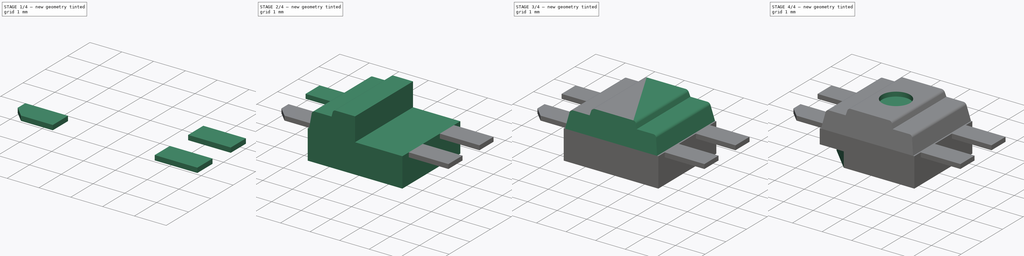
[diagram: build sequence overview — one tinted view per stage of 4, left to right]
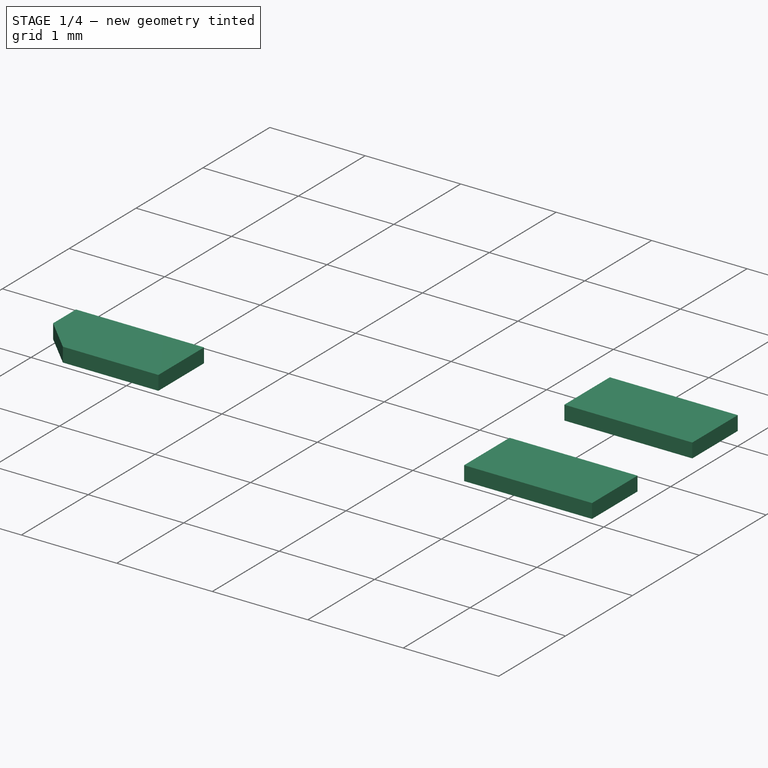
[diagram: stage 1 of 4 — iso view after this stage's code; geometry added in this stage tinted green]
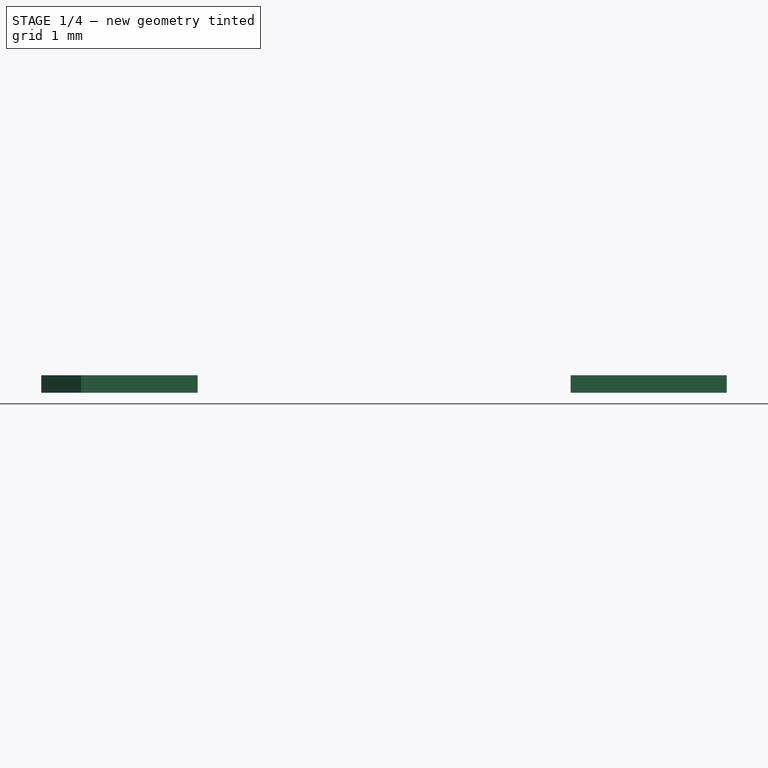
[diagram: stage 1 of 4 — front view after this stage's code; geometry added in this stage tinted green]
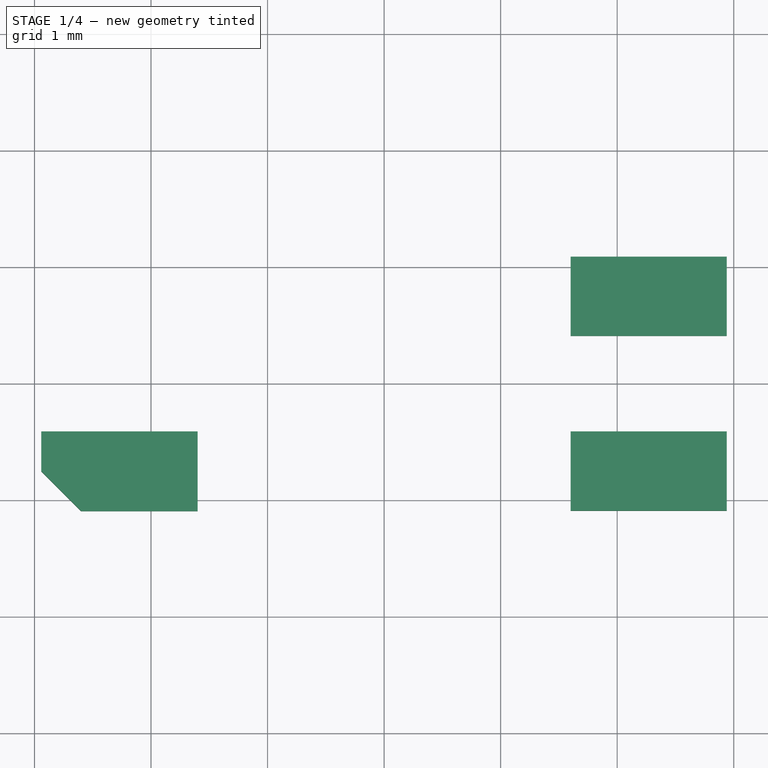
[diagram: stage 1 of 4 — top view after this stage's code; geometry added in this stage tinted green]
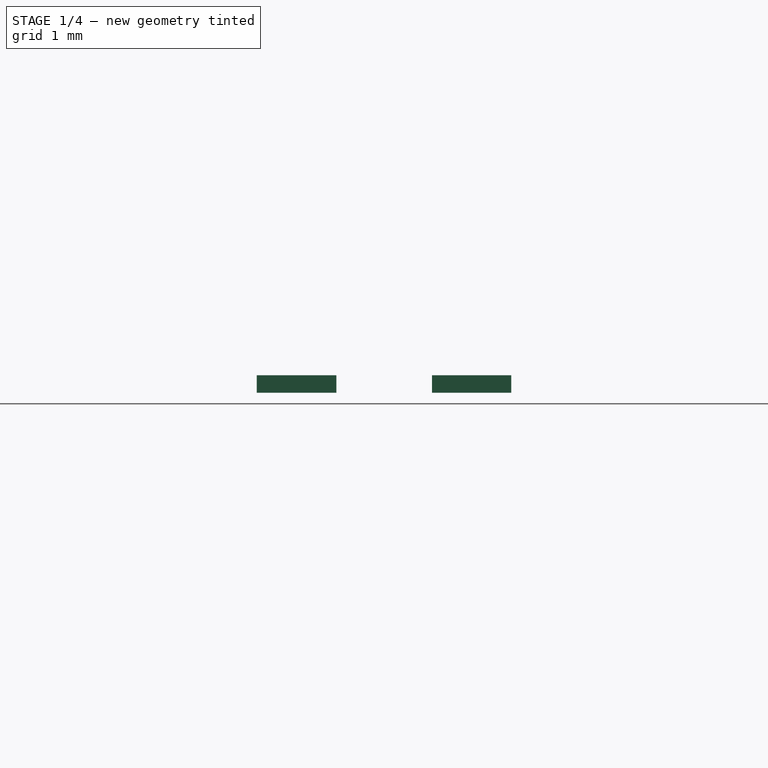
[diagram: stage 1 of 4 — right view after this stage's code; geometry added in this stage tinted green]
FCSTD DOCUMENT  (FreeCAD 1.0R39319 (Git))
Label: LED_SK6812MINI-E_3.2x2.8mm_P1.5mm
License: All rights reserved
LicenseURL: https://en.wikipedia.org/wiki/All_rights_reserved
objects: Sketcher::SketchObject×12, PartDesign::Pad×6, PartDesign::Body×5, PartDesign::Pocket×3, PartDesign::Groove×2, PartDesign::Mirrored×1, PartDesign::Fillet×1
note: 67 computed .brp shape members not serialized (recipe doc carries the construction recipe); baked Part::Feature solids carry a one-line shape summary decoded from their .brp

FEATURE [PartDesign::Body] Body001  label="Pin1"
  AllowCompound = false
  Group = -> [Sketch009,Pad002]
  Origin = -> Origin001
  Tip = -> Pad002
FEATURE [Sketcher::SketchObject] MirroredSketch001
  ArcFitTolerance = 1e-06
  FullyConstrained = false
  MakeInternals = false
  sketch-geometry (5):
    g0: LineSegment StartX=-2.94186 StartY=-0.751761 StartZ=0 EndX=-2.94186 EndY=-0.41 EndZ=0
    g1: LineSegment StartX=-2.94186 StartY=-0.41 StartZ=0 EndX=-1.6 EndY=-0.41 EndZ=0
    g2: LineSegment StartX=-1.6 StartY=-0.41 StartZ=0 EndX=-1.6 EndY=-1.09352 EndZ=0
    g3: LineSegment StartX=-1.6 StartY=-1.09352 StartZ=0 EndX=-2.6001 EndY=-1.09352 EndZ=0
    g4: LineSegment StartX=-2.94186 StartY=-0.751761 StartZ=0 EndX=-2.6001 EndY=-1.09352 EndZ=0
  constraints (10):
    c: Coincident(g0,g1)
    c: Coincident(g1,g2)
    c: Coincident(g2,g3)
    c: Vertical(g0)
    c: Vertical(g2)
    c: Horizontal(g1)
    c: Horizontal(g3)
    c: Angle(g4,g3) = 0.785398
    c: PointOnObject(g0,g4)
    c: Coincident(g3,g4)
FEATURE [PartDesign::Pad] Pad003
  Direction = (0,0,1)
  Length = 0.15
  Length2 = 10
  Profile = -> MirroredSketch001
  ReferenceAxis = -> MirroredSketch001 [N_Axis]
  Refine = true
  Suppressed = false
  Type = 0
FEATURE [PartDesign::Body] Body002  label="Pin2"
  AllowCompound = false
  Group = -> [MirroredSketch001,Pad003]
  Origin = -> Origin002
  Tip = -> Pad003
FEATURE [Sketcher::SketchObject] MirroredSketch002
  ArcFitTolerance = 1e-06
  FullyConstrained = false
  MakeInternals = false
  sketch-geometry (4):
    g0: LineSegment StartX=2.94 StartY=1.09 StartZ=0 EndX=2.94 EndY=0.41 EndZ=0
    g1: LineSegment StartX=2.94 StartY=0.41 StartZ=0 EndX=1.6 EndY=0.41 EndZ=0
    g2: LineSegment StartX=1.6 StartY=0.41 StartZ=0 EndX=1.6 EndY=1.09 EndZ=0
    g3: LineSegment StartX=1.6 StartY=1.09 StartZ=0 EndX=2.94 EndY=1.09 EndZ=0
  constraints (8):
    c: Coincident(g0,g1)
    c: Coincident(g1,g2)
    c: Coincident(g2,g3)
    c: Coincident(g3,g0)
    c: Vertical(g0)
    c: Vertical(g2)
    c: Horizontal(g1)
    c: Horizontal(g3)
FEATURE [PartDesign::Pad] Pad004
  Direction = (0,0,1)
  Length = 0.15
  Length2 = 10
  Profile = -> MirroredSketch002
  ReferenceAxis = -> MirroredSketch002 [N_Axis]
  Refine = true
  Suppressed = false
  Type = 0
FEATURE [PartDesign::Body] Body003  label="Pin3"
  AllowCompound = false
  Group = -> [MirroredSketch002,Pad004]
  Origin = -> Origin003
  Tip = -> Pad004
FEATURE [Sketcher::SketchObject] MirroredSketch003
  ArcFitTolerance = 1e-06
  FullyConstrained = false
  MakeInternals = false
  sketch-geometry (4):
    g0: LineSegment StartX=2.94 StartY=-1.09 StartZ=0 EndX=2.94 EndY=-0.41 EndZ=0
    g1: LineSegment StartX=2.94 StartY=-0.41 StartZ=0 EndX=1.6 EndY=-0.41 EndZ=0
    g2: LineSegment StartX=1.6 StartY=-0.41 StartZ=0 EndX=1.6 EndY=-1.09 EndZ=0
    g3: LineSegment StartX=1.6 StartY=-1.09 StartZ=0 EndX=2.94 EndY=-1.09 EndZ=0
  constraints (8):
    c: Coincident(g0,g1)
    c: Coincident(g1,g2)
    c: Coincident(g2,g3)
    c: Coincident(g3,g0)
    c: Vertical(g0)
    c: Vertical(g2)
    c: Horizontal(g1)
    c: Horizontal(g3)
FEATURE [PartDesign::Pad] Pad005
  Direction = (0,0,1)
  Length = 0.15
  Length2 = 10
  Profile = -> MirroredSketch003
  ReferenceAxis = -> MirroredSketch003 [N_Axis]
  Refine = true
  Suppressed = false
  Type = 0
FEATURE [PartDesign::Body] Body004  label="Pin4"
  AllowCompound = false
  Group = -> [MirroredSketch003,Pad005]
  Origin = -> Origin004
  Tip = -> Pad005
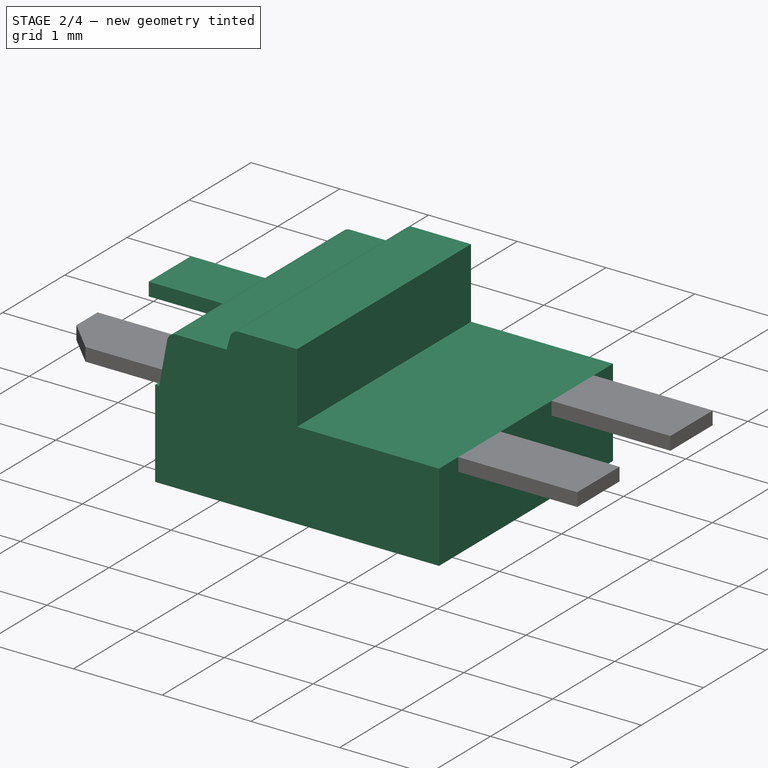
[diagram: stage 2 of 4 — iso view after this stage's code; geometry added in this stage tinted green]
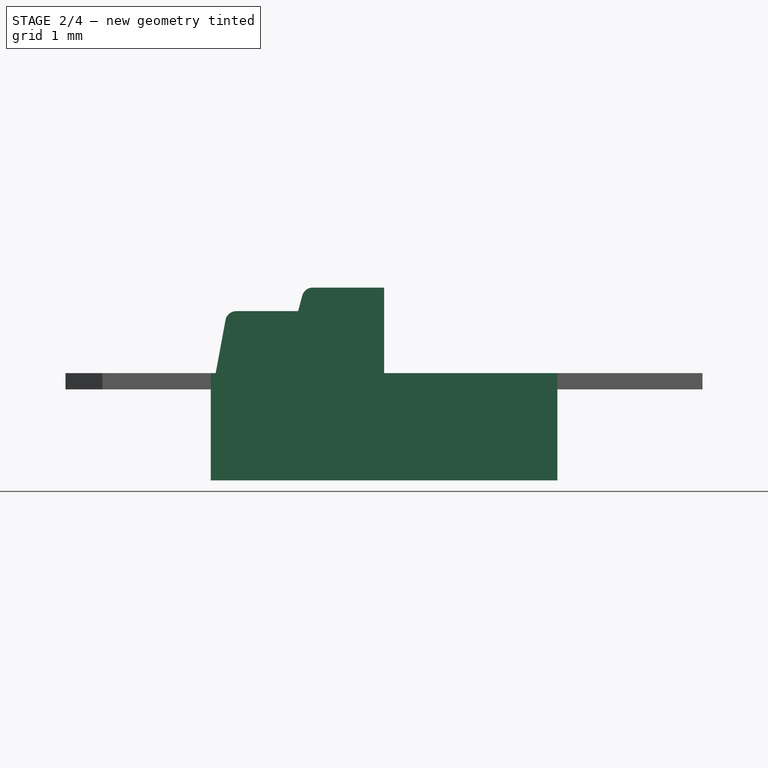
[diagram: stage 2 of 4 — front view after this stage's code; geometry added in this stage tinted green]
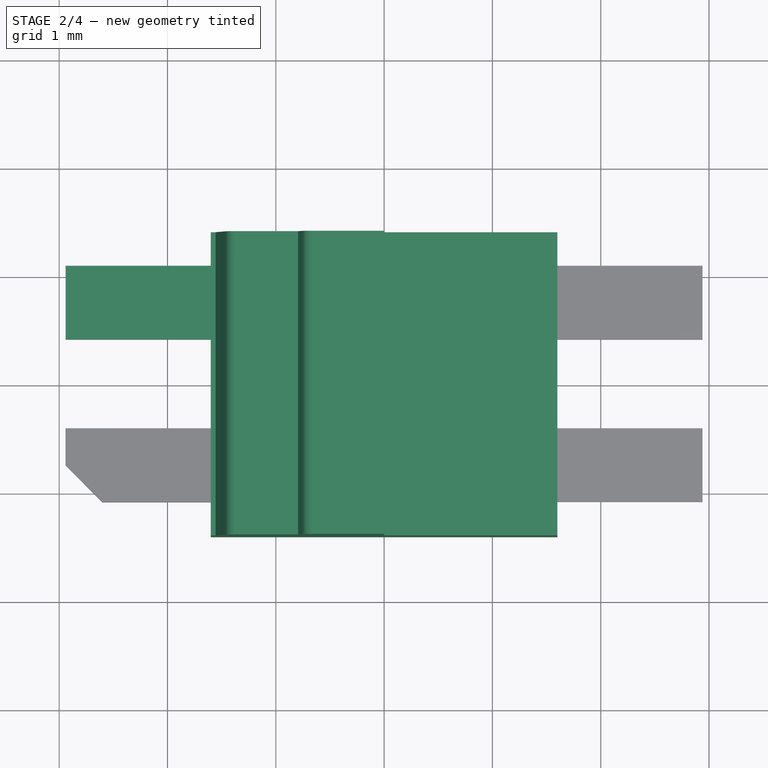
[diagram: stage 2 of 4 — top view after this stage's code; geometry added in this stage tinted green]
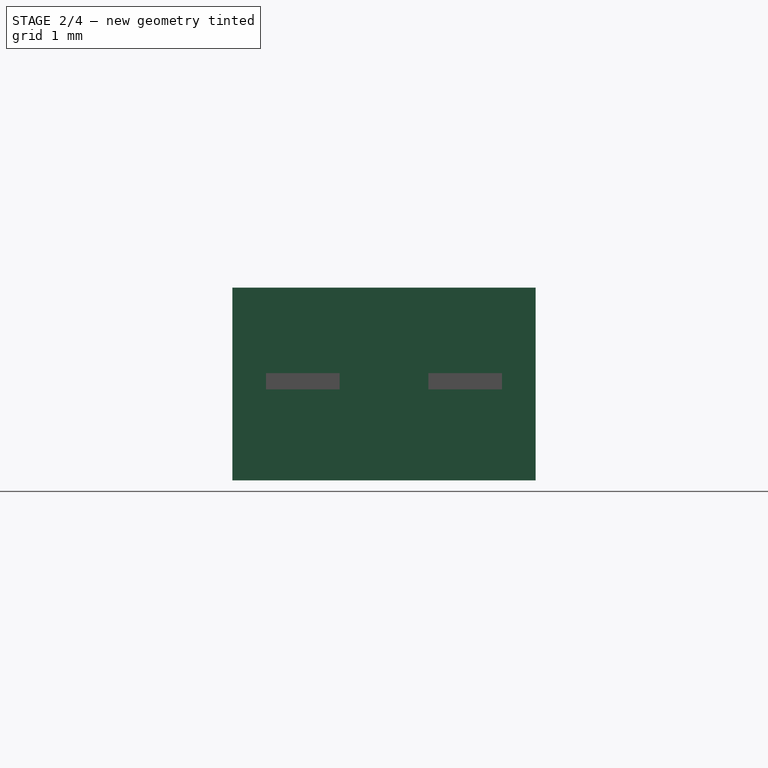
[diagram: stage 2 of 4 — right view after this stage's code; geometry added in this stage tinted green]
FEATURE [Sketcher::SketchObject] MirroredSketch
  ArcFitTolerance = 1e-06
  FullyConstrained = false
  MakeInternals = false
  Placement = pos=(0,0,0) rot=(0.57735,0.57735,0.57735;2.0944rad)
  sketch-geometry (3):
    g0: LineSegment StartX=1.4 StartY=0.15 StartZ=0 EndX=1.2607 EndY=0.94 EndZ=0
    g1: LineSegment StartX=1.2607 StartY=0.94 StartZ=0 EndX=1.4 EndY=0.94 EndZ=0
    g2: LineSegment StartX=1.4 StartY=0.94 StartZ=0 EndX=1.4 EndY=0.15 EndZ=0
  constraints (4):
    c: Coincident(g1,g0)
    c: Coincident(g2,g1)
    c: Coincident(g2,g0)
    c: Angle(g0,g2) = -0.174533
FEATURE [Sketcher::SketchObject] Sketch
  ArcFitTolerance = 1e-06
  AttachmentSupport = -> [XZ_Plane]
  FullyConstrained = true
  MakeInternals = false
  MapMode = 5
  Placement = pos=(0,0,0) rot=(1,0,0;1.5708rad)
  sketch-geometry (6):
    g0: LineSegment StartX=-1.6 StartY=0.15 StartZ=0 EndX=-1.6 EndY=-0.84 EndZ=0
    g1: LineSegment StartX=-1.6 StartY=-0.84 StartZ=0 EndX=1.6 EndY=-0.84 EndZ=0
    g2: LineSegment StartX=1.6 StartY=-0.84 StartZ=0 EndX=1.6 EndY=0.15 EndZ=0
    g3: LineSegment StartX=1.6 StartY=0.15 StartZ=0 EndX=-1.6 EndY=0.15 EndZ=0
    g4: LineSegment [constr] StartX=-1.6 StartY=0.15 StartZ=0 EndX=0 EndY=0 EndZ=0
    g5: LineSegment [constr] StartX=0 StartY=0 StartZ=0 EndX=1.6 EndY=0.15 EndZ=0
  constraints (16):
    c: Coincident(g0,g1)
    c: Coincident(g1,g2)
    c: Coincident(g2,g3)
    c: Coincident(g3,g0)
    c: Vertical(g0)
    c: Vertical(g2)
    c: Horizontal(g1)
    c: Horizontal(g3)
    c: Distance(g0,g2) = 3.2
    c: Distance(g1,g3) = 0.99
    c: Coincident(g4,g0)
    c: Coincident(g4,g-1)
    c: Coincident(g5,g4)
    c: Coincident(g5,g2)
    c: Equal(g5,g4)
    c: Distance(g4,g3) = 0.15
FEATURE [PartDesign::Pad] Pad
  Direction = (0,-1,2e-16)
  Length = 2.8
  Length2 = 10
  Midplane = true
  Placement = pos=(0,0,0) rot=(1,0,0;1.5708rad)
  Profile = -> Sketch
  ReferenceAxis = -> Sketch [N_Axis]
  Refine = true
  Suppressed = false
  Type = 0
FEATURE [Sketcher::SketchObject] Sketch001
  ArcFitTolerance = 1e-06
  AttachmentSupport = -> [XZ_Plane]
  FullyConstrained = true
  MakeInternals = false
  MapMode = 5
  Placement = pos=(0,0,0) rot=(1,0,0;1.5708rad)
  sketch-geometry (4):
    g0: LineSegment [constr] StartX=0 StartY=0.94 StartZ=0 EndX=0 EndY=-0.84 EndZ=0
    g1: LineSegment [constr] StartX=-2.94 StartY=0 StartZ=0 EndX=2.94 EndY=1e-16 EndZ=0
    g2: LineSegment [constr] StartX=-2.94 StartY=0 StartZ=0 EndX=0 EndY=0.94 EndZ=0
    g3: LineSegment [constr] StartX=0 StartY=0.94 StartZ=0 EndX=2.94 EndY=1e-16 EndZ=0
  constraints (12):
    c: PointOnObject(g0,g-2)
    c: PointOnObject(g0,g-2)
    c: DistanceY(g0,g0) = 1.78
    c: DistanceY(g0,g-1) = 0.84
    c: PointOnObject(g1,g-1)
    c: PointOnObject(g1,g-1)
    c: DistanceX(g1,g1) = 5.88
    c: Coincident(g2,g1)
    c: Coincident(g2,g0)
    c: Coincident(g3,g0)
    c: Coincident(g3,g1)
    c: Equal(g3,g2)
FEATURE [Sketcher::SketchObject] Sketch002
  ArcFitTolerance = 1e-06
  AttachmentSupport = -> [XZ_Plane]
  ExternalGeometry = -> [Pad]
  FullyConstrained = true
  MakeInternals = false
  MapMode = 5
  Placement = pos=(0,0,0) rot=(1,0,0;1.5708rad)
  sketch-geometry (8):
    g0: LineSegment StartX=-1.555 StartY=0.15 StartZ=0 EndX=-1.46405 EndY=0.640724 EndZ=0
    g1: LineSegment StartX=-1.36572 StartY=0.7225 StartZ=0 EndX=-0.794 EndY=0.7225 EndZ=0
    g2: LineSegment StartX=-0.794 StartY=0.7225 StartZ=0 EndX=-0.755581 EndY=0.865882 EndZ=0
    g3: LineSegment StartX=-0.658988 StartY=0.94 StartZ=0 EndX=0 EndY=0.94 EndZ=0
    g4: ArcOfCircle CenterX=-1.36572 CenterY=0.6225 CenterZ=0 NormalX=0 NormalY=0 NormalZ=1 AngleXU=0 Radius=0.1 StartAngle=1.5708 EndAngle=2.95833
    g5: ArcOfCircle CenterX=-0.658988 CenterY=0.84 CenterZ=0 NormalX=0 NormalY=0 NormalZ=1 AngleXU=0 Radius=0.1 StartAngle=1.5708 EndAngle=2.87979
    g6: LineSegment StartX=0 StartY=0.15 StartZ=0 EndX=-1.555 EndY=0.15 EndZ=0
    g7: LineSegment StartX=0 StartY=0.94 StartZ=0 EndX=0 EndY=0.15 EndZ=0
  constraints (22):
    c: PointOnObject(g0,g-3)
    c: Horizontal(g1)
    c: Coincident(g2,g1)
    c: PointOnObject(g3,g-2)
    c: Horizontal(g3)
    c: DistanceX(g-3,g0) = 0.045
    c: Radius(g4) = 0.1
    c: Equal(g4,g5)
    c: Distance(g-4,g3) = 1.78
    c: DistanceY(g-1,g1) = 0.7225
    c: Tangent(g4,g1) = 1.5708
    c: Tangent(g4,g0) = 1.5708
    c: Tangent(g5,g2) = 1.5708
    c: Tangent(g5,g3) = 1.5708
    c: Coincident(g6,g0)
    c: DistanceX(g1,g-1) = 0.794
    c: Angle(g0,g-2) = 0.18326
    c: Angle(g2,g-2) = 0.261799
    c: Horizontal(g6)
    c: Vertical(g3,g6)
    c: Coincident(g7,g3)
    c: Coincident(g7,g6)
FEATURE [PartDesign::Pad] Pad001
  BaseFeature = -> Pad
  Direction = (0,-1,2e-16)
  Length = 2.8
  Length2 = 10
  Midplane = true
  Placement = pos=(0,0,0) rot=(1,0,0;1.5708rad)
  Profile = -> Sketch002
  ReferenceAxis = -> Sketch002 [N_Axis]
  Refine = true
  Suppressed = false
  Type = 0
FEATURE [PartDesign::Body] Body
  AllowCompound = false
  Group = -> [Sketch001,Sketch,Pad,Sketch002,Pad001,Mirrored,Sketch003,Pocket,MirroredSketch,Pocket001,Sketch006,Groove,Sketch007,Groove001,Sketch008,Pocket003,Fillet]
  Origin = -> Origin
  Tip = -> Fillet
FEATURE [Sketcher::SketchObject] Sketch009
  ArcFitTolerance = 1e-06
  AttachmentSupport = -> [XY_Plane001]
  FullyConstrained = true
  MakeInternals = false
  MapMode = 5
  sketch-geometry (4):
    g0: LineSegment StartX=-2.94 StartY=1.09 StartZ=0 EndX=-2.94 EndY=0.41 EndZ=0
    g1: LineSegment StartX=-2.94 StartY=0.41 StartZ=0 EndX=-1.6 EndY=0.41 EndZ=0
    g2: LineSegment StartX=-1.6 StartY=0.41 StartZ=0 EndX=-1.6 EndY=1.09 EndZ=0
    g3: LineSegment StartX=-1.6 StartY=1.09 StartZ=0 EndX=-2.94 EndY=1.09 EndZ=0
  constraints (12):
    c: Coincident(g0,g1)
    c: Coincident(g1,g2)
    c: Coincident(g2,g3)
    c: Coincident(g3,g0)
    c: Vertical(g0)
    c: Vertical(g2)
    c: Horizontal(g1)
    c: Horizontal(g3)
    c: Distance(g1,g-1) = 0.41
    c: DistanceY(g0,g0) = 0.68
    c: DistanceX(g3,g3) = 1.34
    c: Distance(g-2,g2) = 1.6
FEATURE [PartDesign::Pad] Pad002
  Direction = (0,0,1)
  Length = 0.15
  Length2 = 10
  Profile = -> Sketch009
  ReferenceAxis = -> Sketch009 [N_Axis]
  Refine = true
  Suppressed = false
  Type = 0
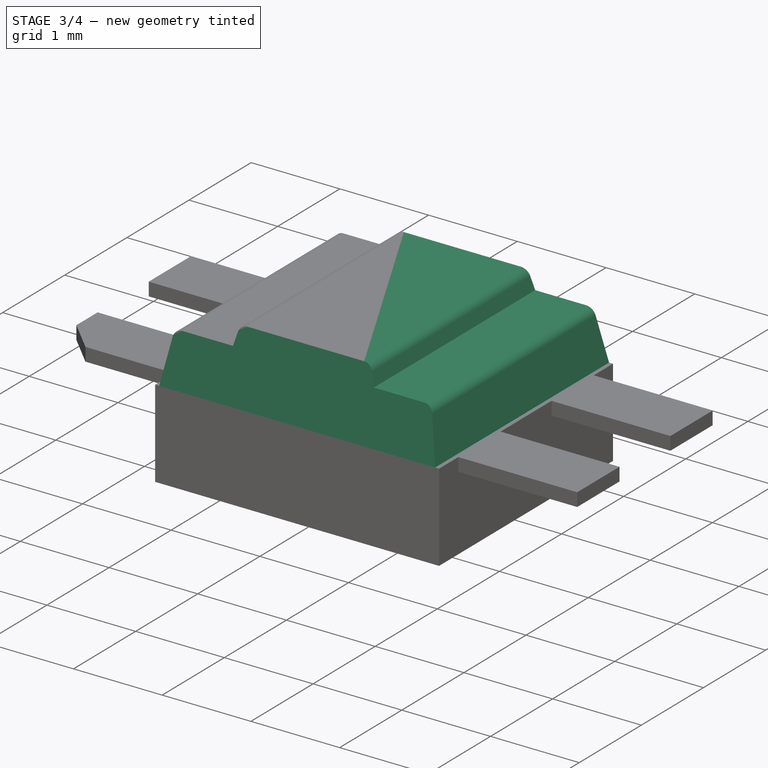
[diagram: stage 3 of 4 — iso view after this stage's code; geometry added in this stage tinted green]
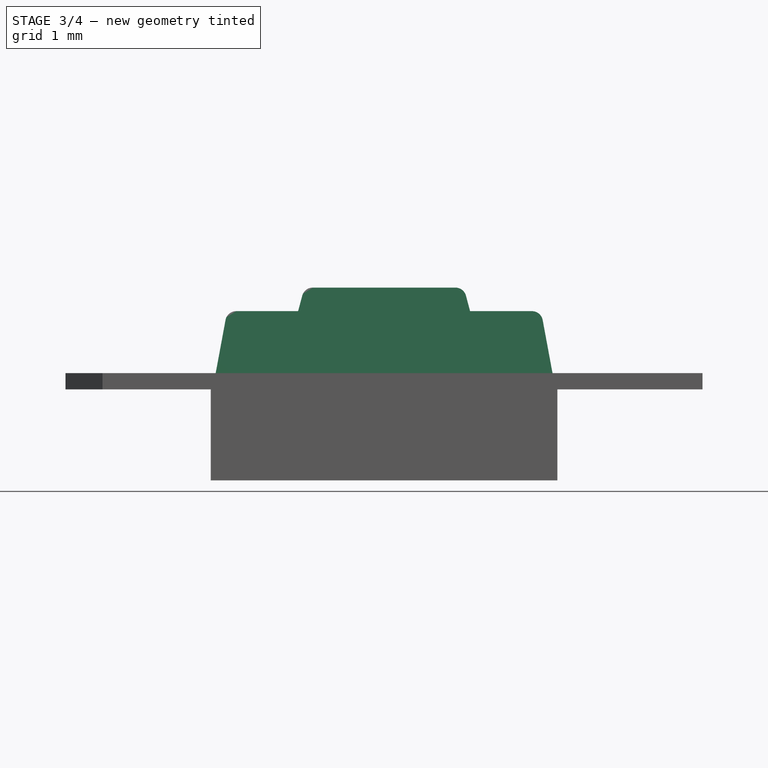
[diagram: stage 3 of 4 — front view after this stage's code; geometry added in this stage tinted green]
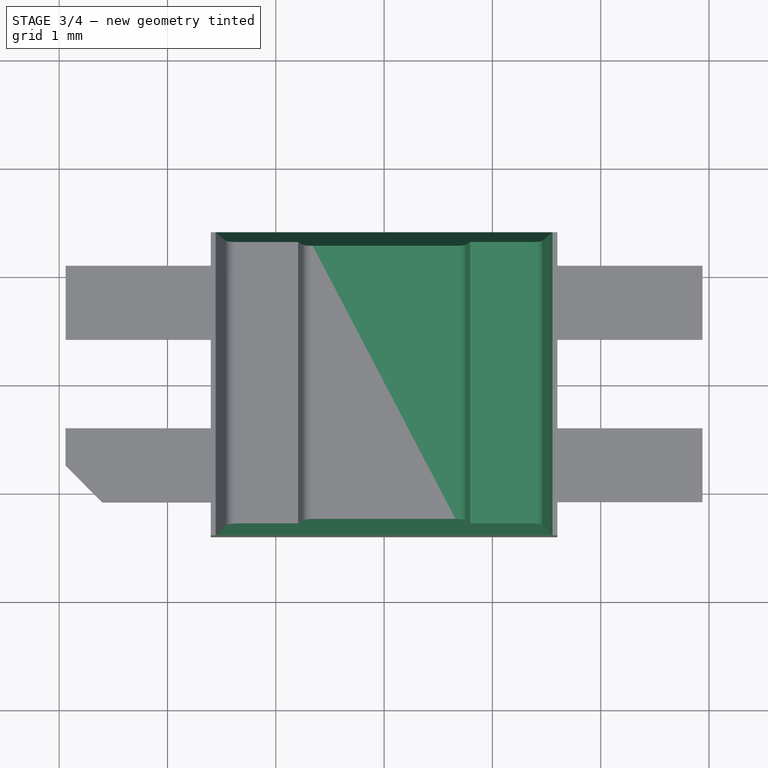
[diagram: stage 3 of 4 — top view after this stage's code; geometry added in this stage tinted green]
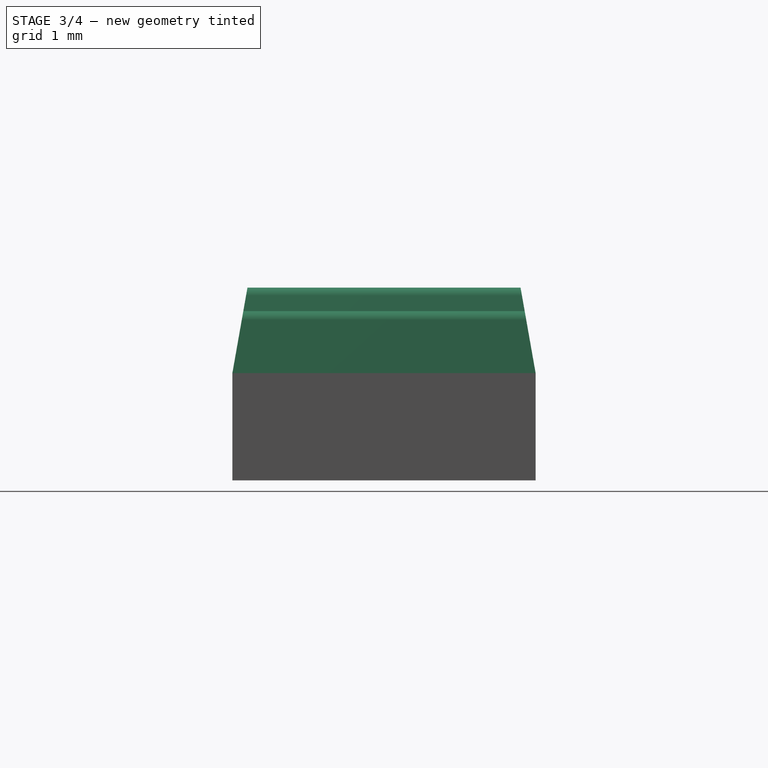
[diagram: stage 3 of 4 — right view after this stage's code; geometry added in this stage tinted green]
FEATURE [PartDesign::Mirrored] Mirrored
  BaseFeature = -> Pad001
  MirrorPlane = -> Sketch002 [V_Axis]
  Originals = -> [Pad001]
  Placement = pos=(0,0,0) rot=(1,0,0;1.5708rad)
  Refine = true
  Suppressed = false
  TransformMode = 0
FEATURE [Sketcher::SketchObject] Sketch003
  ArcFitTolerance = 1e-06
  AttachmentSupport = -> [YZ_Plane]
  ExternalGeometry = -> [Mirrored]
  FullyConstrained = true
  MakeInternals = false
  MapMode = 5
  Placement = pos=(0,0,0) rot=(0.57735,0.57735,0.57735;2.0944rad)
  sketch-geometry (3):
    g0: LineSegment StartX=-1.4 StartY=0.15 StartZ=0 EndX=-1.2607 EndY=0.94 EndZ=0
    g1: LineSegment StartX=-1.2607 StartY=0.94 StartZ=0 EndX=-1.4 EndY=0.94 EndZ=0
    g2: LineSegment StartX=-1.4 StartY=0.94 StartZ=0 EndX=-1.4 EndY=0.15 EndZ=0
  constraints (7):
    c: Coincident(g0,g-3)
    c: PointOnObject(g0,g-4)
    c: Coincident(g1,g0)
    c: Coincident(g1,g-4)
    c: Coincident(g2,g1)
    c: Coincident(g2,g0)
    c: Angle(g0,g2) = 0.174533
FEATURE [PartDesign::Pocket] Pocket
  BaseFeature = -> Mirrored
  Direction = (-1,0,0)
  Length = 5
  Length2 = 5
  Midplane = true
  Placement = pos=(0,0,0) rot=(1,0,0;1.5708rad)
  Profile = -> Sketch003
  ReferenceAxis = -> Sketch003 [N_Axis]
  Refine = true
  Suppressed = false
  Type = 1
FEATURE [PartDesign::Pocket] Pocket001
  BaseFeature = -> Pocket
  Direction = (-1,-1e-16,1e-16)
  Length = 5
  Length2 = 5
  Midplane = true
  Placement = pos=(0,0,0) rot=(1,0,0;1.5708rad)
  Profile = -> MirroredSketch
  ReferenceAxis = -> MirroredSketch [N_Axis]
  Refine = true
  Suppressed = false
  Type = 1
FEATURE [Sketcher::SketchObject] Sketch006
  ArcFitTolerance = 1e-06
  AttachmentSupport = -> [XZ_Plane]
  ExternalGeometry = -> [Pocket001]
  FullyConstrained = true
  MakeInternals = false
  MapMode = 5
  Placement = pos=(0,0,0) rot=(1,0,0;1.5708rad)
  sketch-geometry (4):
    g0: LineSegment StartX=-1e-16 StartY=0.15 StartZ=0 EndX=0.9 EndY=0.15 EndZ=0
    g1: LineSegment StartX=0.9 StartY=0.15 StartZ=0 EndX=1.2 EndY=-0.84 EndZ=0
    g2: LineSegment StartX=1.2 StartY=-0.84 StartZ=0 EndX=-1.918e-13 EndY=-0.84 EndZ=0
    g3: LineSegment StartX=-1.918e-13 StartY=-0.84 StartZ=0 EndX=-1e-16 EndY=0.15 EndZ=0
  constraints (10):
    c: Symmetric(g-3,g-3,g0)
    c: PointOnObject(g0,g-3)
    c: Coincident(g1,g0)
    c: PointOnObject(g1,g-4)
    c: Coincident(g2,g1)
    c: Symmetric(g-4,g-4,g2)
    c: Coincident(g3,g2)
    c: Coincident(g3,g0)
    c: DistanceX(g0,g0) = 0.9
    c: DistanceX(g2,g2) = 1.2
FEATURE [PartDesign::Groove] Groove
  Angle = 360
  Angle2 = 60
  Axis = (0,2e-16,1)
  Base = (0,0,0)
  BaseFeature = -> Pocket001
  Placement = pos=(0,0,0) rot=(1,0,0;1.5708rad)
  Profile = -> Sketch006
  ReferenceAxis = -> Sketch006 [V_Axis]
  Refine = true
  Suppressed = false
  Type = 0
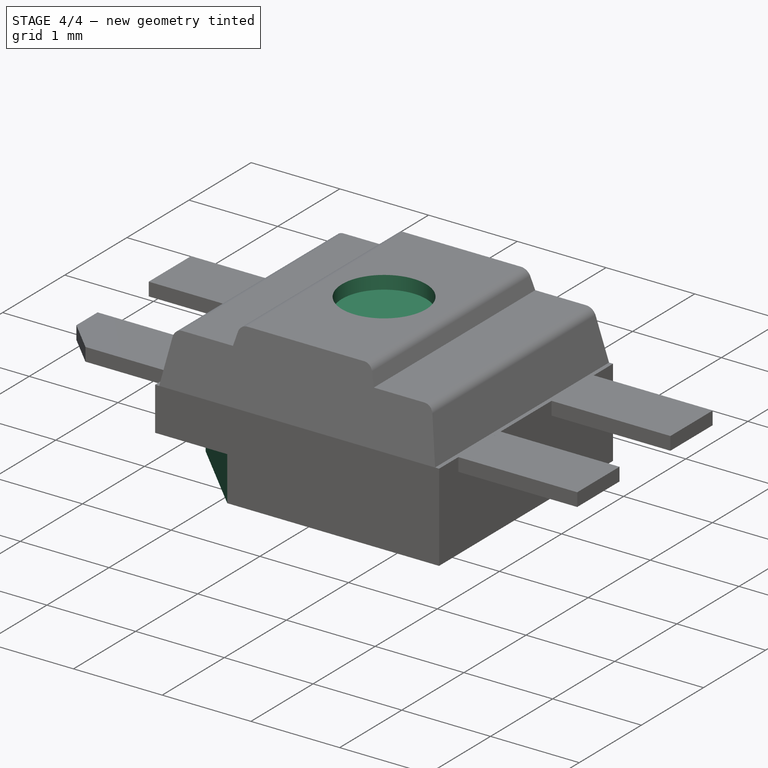
[diagram: stage 4 of 4 — iso view after this stage's code; geometry added in this stage tinted green]
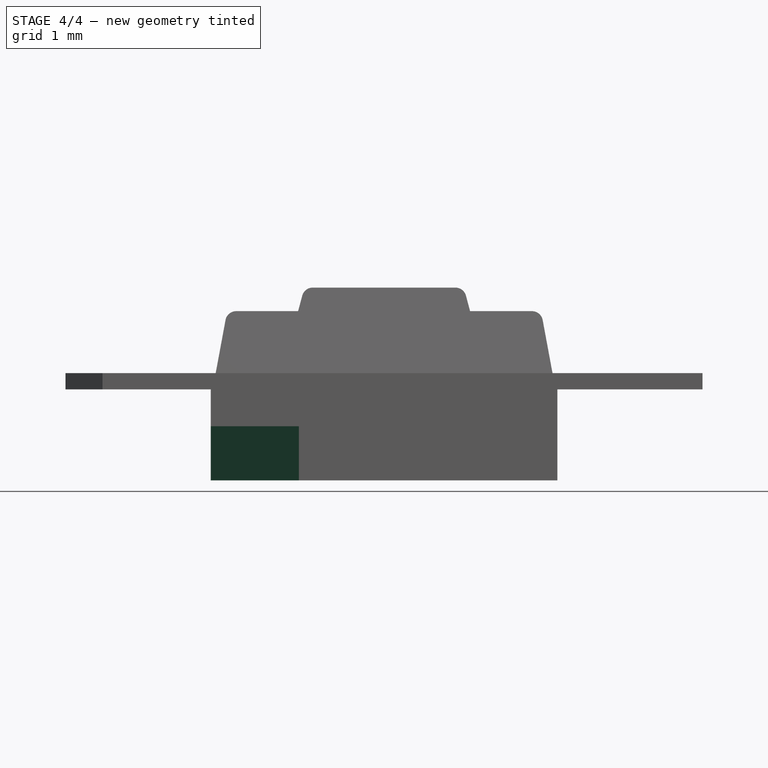
[diagram: stage 4 of 4 — front view after this stage's code; geometry added in this stage tinted green]
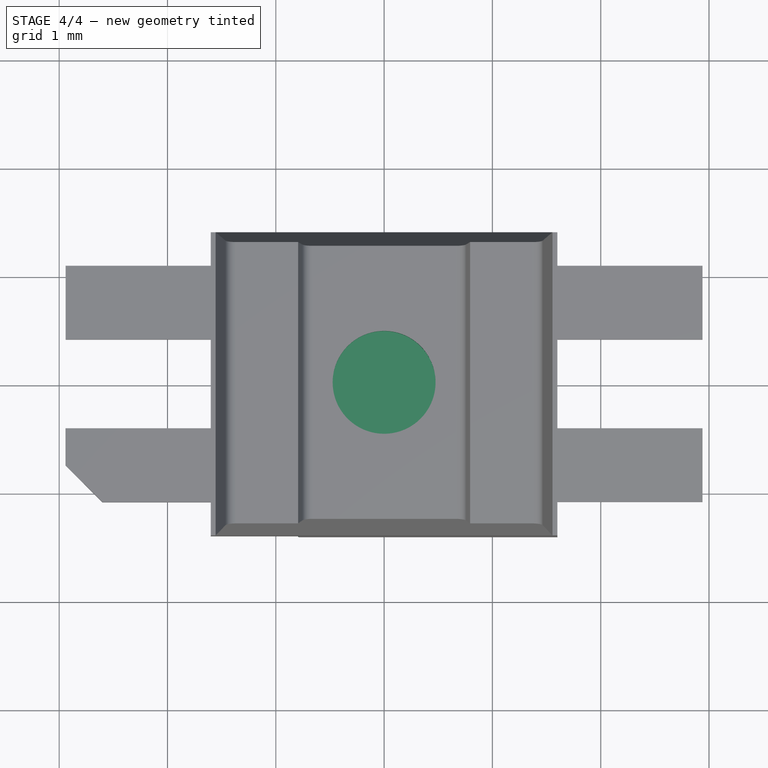
[diagram: stage 4 of 4 — top view after this stage's code; geometry added in this stage tinted green]
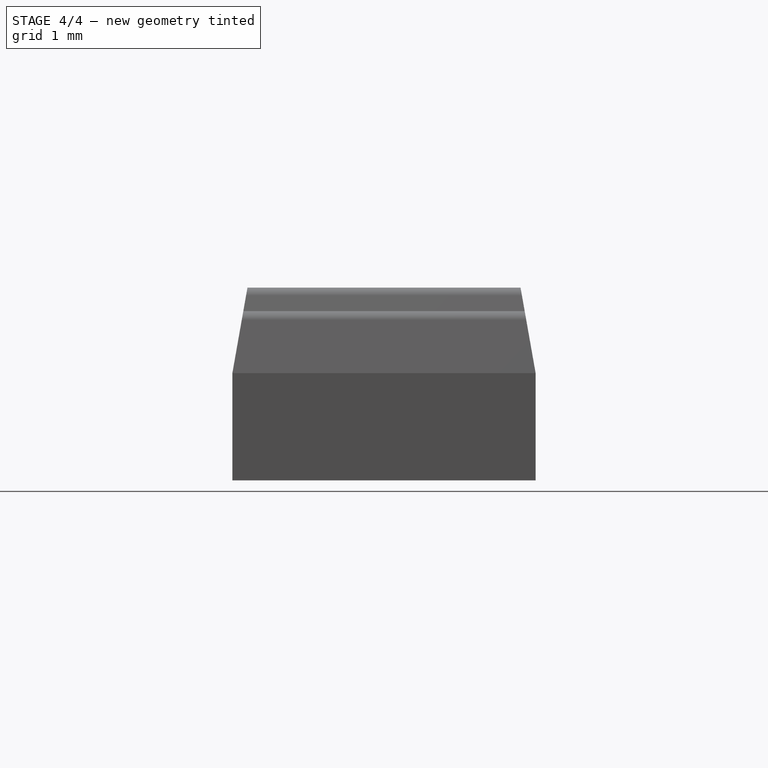
[diagram: stage 4 of 4 — right view after this stage's code; geometry added in this stage tinted green]
FEATURE [Sketcher::SketchObject] Sketch007
  ArcFitTolerance = 1e-06
  AttachmentSupport = -> [XZ_Plane]
  ExternalGeometry = -> [Groove]
  FullyConstrained = true
  MakeInternals = false
  MapMode = 5
  Placement = pos=(0,0,0) rot=(1,0,0;1.5708rad)
  sketch-geometry (4):
    g0: LineSegment StartX=0 StartY=0.94 StartZ=0 EndX=0.475 EndY=0.94 EndZ=0
    g1: LineSegment StartX=0.475 StartY=0.94 StartZ=0 EndX=0.475 EndY=0.79 EndZ=0
    g2: LineSegment StartX=0.475 StartY=0.79 StartZ=0 EndX=0 EndY=0.79 EndZ=0
    g3: LineSegment StartX=0 StartY=0.79 StartZ=0 EndX=0 EndY=0.94 EndZ=0
  constraints (11):
    c: Symmetric(g-3,g-3,g0)
    c: PointOnObject(g0,g-3)
    c: Coincident(g1,g0)
    c: Coincident(g2,g1)
    c: Horizontal(g2)
    c: Coincident(g3,g2)
    c: Coincident(g3,g0)
    c: Vertical(g3)
    c: Vertical(g1)
    c: DistanceY(g1,g1) = 0.15
    c: DistanceX(g2,g2) = 0.475
FEATURE [PartDesign::Groove] Groove001
  Angle = 360
  Angle2 = 60
  Axis = (0,2e-16,1)
  Base = (0,0,0)
  BaseFeature = -> Groove
  Placement = pos=(0,0,0) rot=(1,0,0;1.5708rad)
  Profile = -> Sketch007
  ReferenceAxis = -> Sketch007 [V_Axis]
  Refine = true
  Suppressed = false
  Type = 0
FEATURE [Sketcher::SketchObject] Sketch008
  ArcFitTolerance = 1e-06
  AttachmentSupport = -> [Groove001]
  ExternalGeometry = -> [Groove001]
  FullyConstrained = true
  MakeInternals = false
  MapMode = 5
  Placement = pos=(0,-4e-16,-0.84) rot=(1,0,0;3.14159rad)
  sketch-geometry (3):
    g0: LineSegment StartX=-1.6 StartY=1.4 StartZ=0 EndX=-0.786827 EndY=1.4 EndZ=0
    g1: LineSegment StartX=-0.786827 StartY=1.4 StartZ=0 EndX=-1.6 EndY=0.586827 EndZ=0
    g2: LineSegment StartX=-1.6 StartY=0.586827 StartZ=0 EndX=-1.6 EndY=1.4 EndZ=0
  constraints (8):
    c: Coincident(g0,g-4)
    c: PointOnObject(g0,g-3)
    c: Coincident(g1,g0)
    c: PointOnObject(g1,g-4)
    c: Coincident(g2,g1)
    c: Coincident(g2,g0)
    c: Angle(g0,g1) = 0.785398
    c: Distance(g0,g1) = 0.575
FEATURE [PartDesign::Pocket] Pocket003
  BaseFeature = -> Groove001
  Direction = (0,0,1)
  Length = 0.5
  Length2 = 5
  Placement = pos=(0,0,0) rot=(1,0,0;1.5708rad)
  Profile = -> Sketch008
  ReferenceAxis = -> Sketch008 [N_Axis]
  Refine = true
  Suppressed = false
  Type = 0
FEATURE [PartDesign::Fillet] Fillet
  Base = -> Pocket003 [Edge13,Edge12,Edge7,Edge2]
  BaseFeature = -> Pocket003
  Placement = pos=(0,0,0) rot=(1,0,0;1.5708rad)
  Radius = 5e-05
  Refine = true
  SupportTransform = false
  Suppressed = false
  UseAllEdges = false
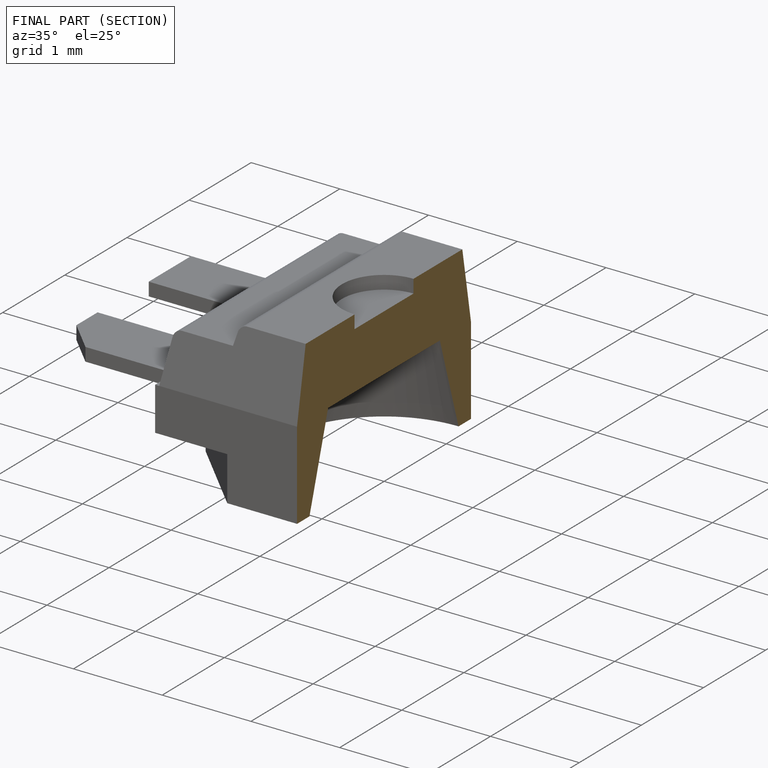
[diagram: finished part — half-section view (interior)]
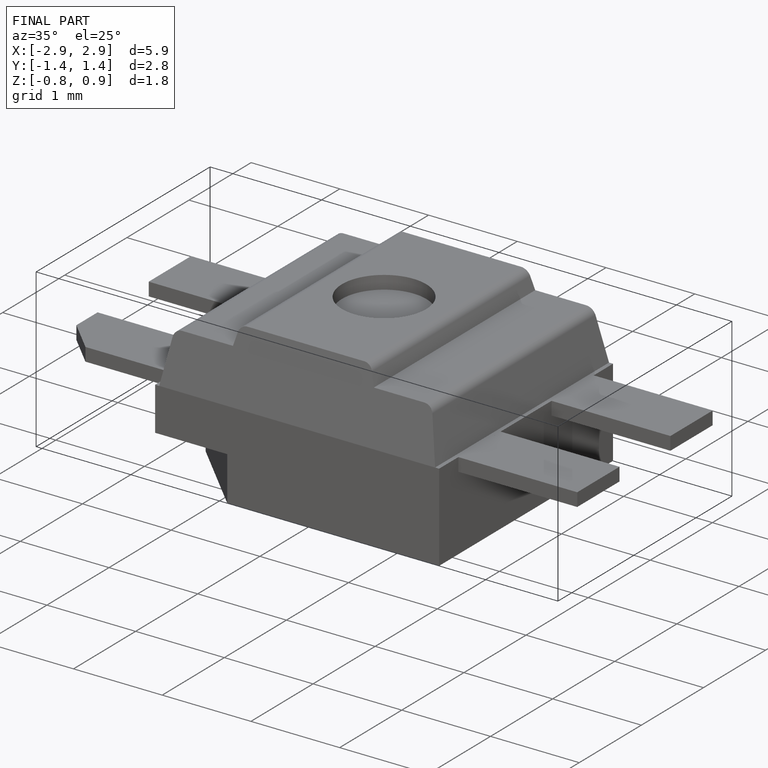
[diagram: finished part — iso view with bounding-box wireframe]
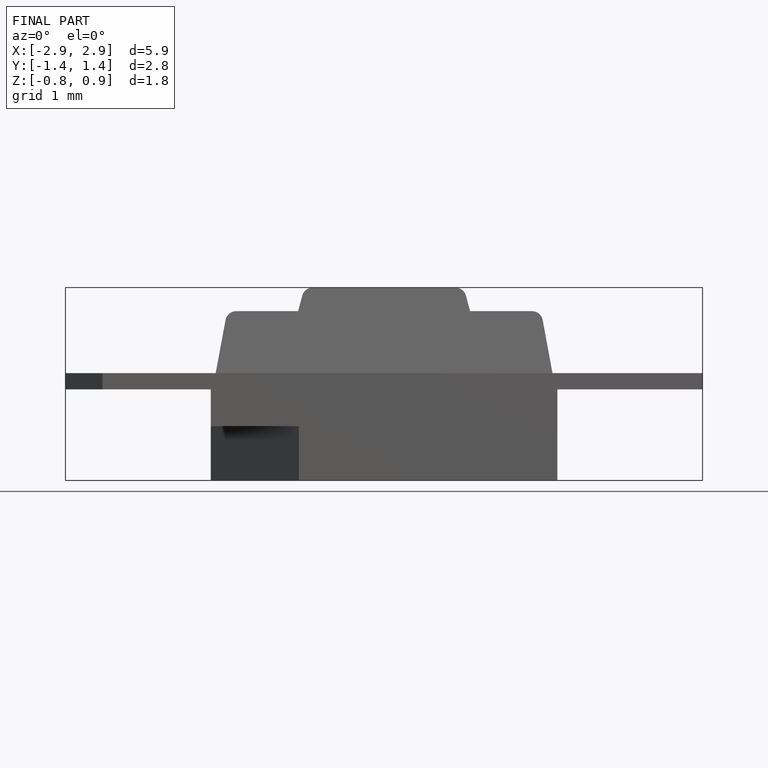
[diagram: finished part — front view with bounding-box wireframe]
